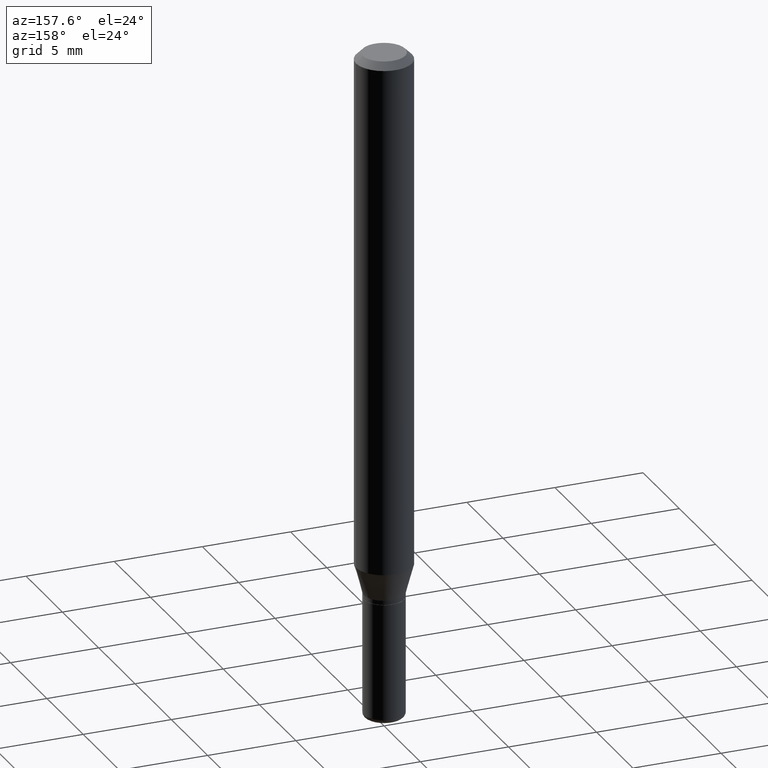
[diagram: clean part render]
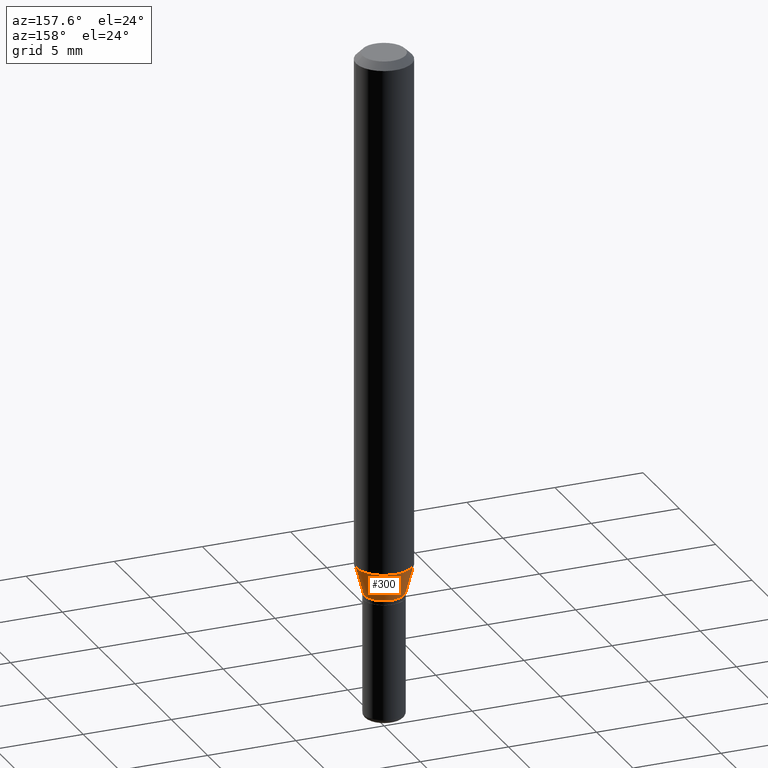
[diagram: same view with one face highlighted and labeled with its STEP entity id]
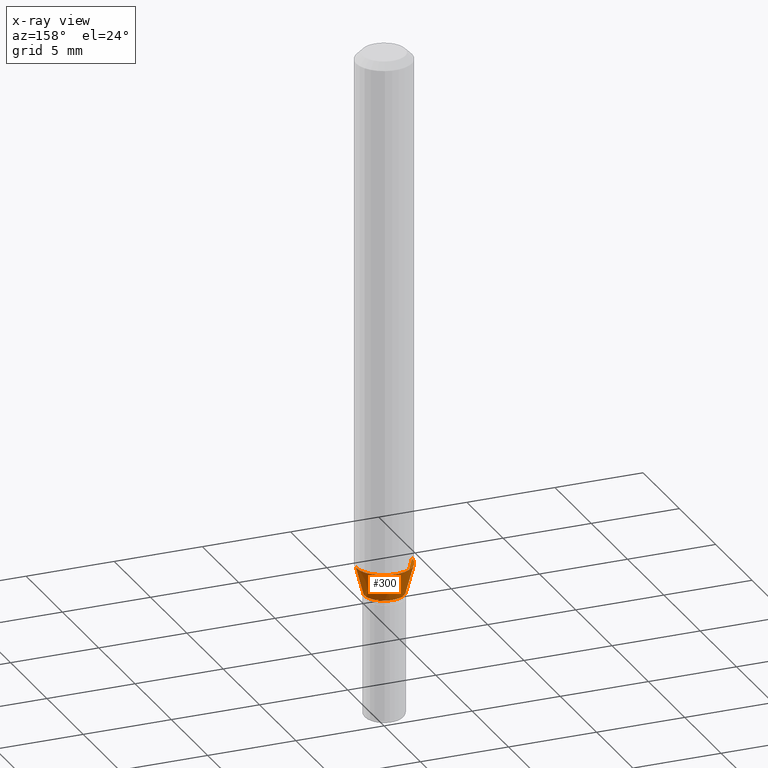
[diagram: x-ray of the same camera — body ghosted, the highlighted face saturated]
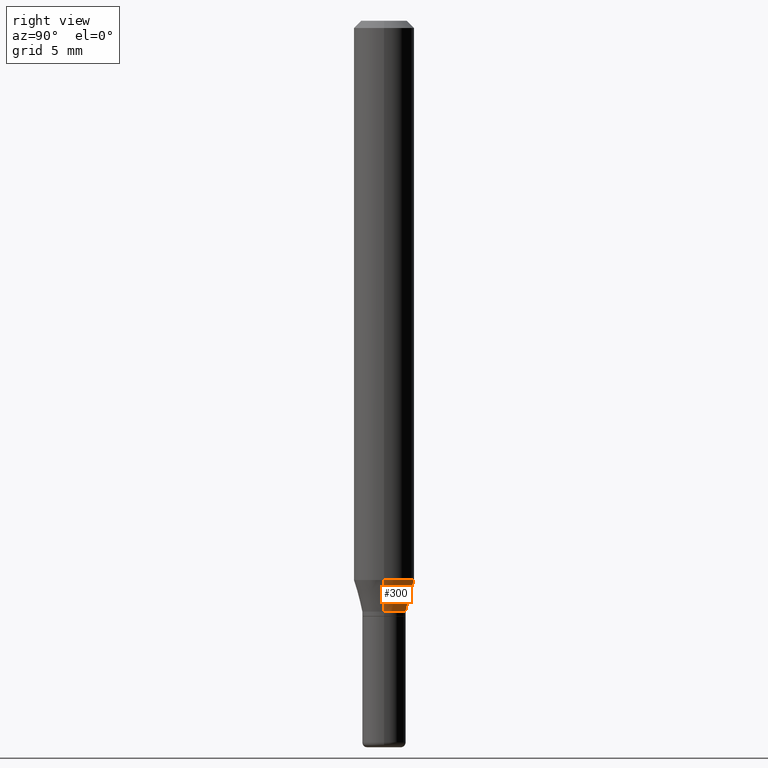
[diagram: same view with one face highlighted and labeled with its STEP entity id]
A machine part, auxiliary view. The second image highlights one B-rep face of the part: STEP entity #300.
The next image is the same camera in x-ray: the body ghosted, the highlighted face saturated — about 0% of this face is hidden behind the body in this view.
A second angle (right view) of the same face is appended — the face is thin or edge-on in the first view.
In plain terms, the highlighted conical surface has half-angle 15 deg.
Its self-contained STEP definition (entity closure, byte-faithful):
#21 = EDGE_CURVE ( 'NONE', #216, #333, #379, .T. ) ;
#35 = VERTEX_POINT ( 'NONE', #104 ) ;
#40 = AXIS2_PLACEMENT_3D ( 'NONE', #516, #208, #135 ) ;
#59 = CIRCLE ( 'NONE', #40, 0.06250000000000000000 ) ;
#64 = ORIENTED_EDGE ( 'NONE', *, *, #335, .F. ) ;
#67 = ORIENTED_EDGE ( 'NONE', *, *, #21, .F. ) ;
#80 = CARTESIAN_POINT ( 'NONE',  ( 0.04499999999999995670, -4.573840553884519999E-15, -1.220000000000000195 ) ) ;
#104 = CARTESIAN_POINT ( 'NONE',  ( -0.04499999999999995670, -3.763674637602973398E-15, -1.220000000000000195 ) ) ;
#108 = EDGE_CURVE ( 'NONE', #35, #353, #238, .T. ) ;
#120 = EDGE_LOOP ( 'NONE', ( #200, #346, #64, #67 ) ) ;
#135 = DIRECTION ( 'NONE',  ( 1.000000000000000000, -6.982962677686270655E-15, 0.000000000000000000 ) ) ;
#136 = CIRCLE ( 'NONE', #322, 0.04499999999999995670 ) ;
#142 = VECTOR ( 'NONE', #438, 39.37007874015748854 ) ;
#150 = DIRECTION ( 'NONE',  ( 0.2588190451025207395, 1.565188264969626109E-15, 0.9659258262890682012 ) ) ;
#169 = CARTESIAN_POINT ( 'NONE',  ( 2.983471943545866670E-29, -4.259607233388637524E-15, -1.220000000000000195 ) ) ;
#175 = CONICAL_SURFACE ( 'NONE', #429, 0.04499999999999995670, 0.2617993877991494633 ) ;
#200 = ORIENTED_EDGE ( 'NONE', *, *, #286, .T. ) ;
#208 = DIRECTION ( 'NONE',  ( -2.445468806185136597E-29, 3.491481338843145583E-15, 1.000000000000000000 ) ) ;
#216 = VERTEX_POINT ( 'NONE', #80 ) ;
#238 = LINE ( 'NONE', #323, #142 ) ;
#245 = DIRECTION ( 'NONE',  ( 1.000000000000000000, -6.982962677686275388E-15, 0.000000000000000000 ) ) ;
#286 = EDGE_CURVE ( 'NONE', #216, #35, #136, .T. ) ;
#300 = ADVANCED_FACE ( 'NONE', ( #375 ), #175, .T. ) ;
#321 = VECTOR ( 'NONE', #150, 39.37007874015748854 ) ;
#322 = AXIS2_PLACEMENT_3D ( 'NONE', #445, #518, #408 ) ;
#323 = CARTESIAN_POINT ( 'NONE',  ( -0.04499999999999995670, -3.939863002296592945E-15, -1.220000000000000195 ) ) ;
#326 = CARTESIAN_POINT ( 'NONE',  ( 0.06250000000000000000, -4.468010650114807348E-15, -1.154689110867544555 ) ) ;
#333 = VERTEX_POINT ( 'NONE', #326 ) ;
#335 = EDGE_CURVE ( 'NONE', #333, #353, #59, .T. ) ;
#337 = DIRECTION ( 'NONE',  ( -2.445468806185136597E-29, 3.491481338843145583E-15, 1.000000000000000000 ) ) ;
#346 = ORIENTED_EDGE ( 'NONE', *, *, #108, .T. ) ;
#353 = VERTEX_POINT ( 'NONE', #449 ) ;
#375 = FACE_OUTER_BOUND ( 'NONE', #120, .T. ) ;
#379 = LINE ( 'NONE', #427, #321 ) ;
#408 = DIRECTION ( 'NONE',  ( 1.000000000000000000, -6.982962677686275388E-15, 0.000000000000000000 ) ) ;
#427 = CARTESIAN_POINT ( 'NONE',  ( 0.04499999999999995670, -4.573840553884519999E-15, -1.220000000000000195 ) ) ;
#429 = AXIS2_PLACEMENT_3D ( 'NONE', #169, #337, #245 ) ;
#438 = DIRECTION ( 'NONE',  ( -0.2588190451025207395, 5.211531920934546309E-15, 0.9659258262890682012 ) ) ;
#445 = CARTESIAN_POINT ( 'NONE',  ( 2.983471943545866670E-29, -4.259607233388637524E-15, -1.220000000000000195 ) ) ;
#449 = CARTESIAN_POINT ( 'NONE',  ( -0.06250000000000000000, -3.587486272909353851E-15, -1.154689110867544555 ) ) ;
#516 = CARTESIAN_POINT ( 'NONE',  ( 2.823756201468231071E-29, -4.031575482759415678E-15, -1.154689110867544555 ) ) ;
#518 = DIRECTION ( 'NONE',  ( -2.445468806185136597E-29, 3.491481338843145583E-15, 1.000000000000000000 ) ) ;